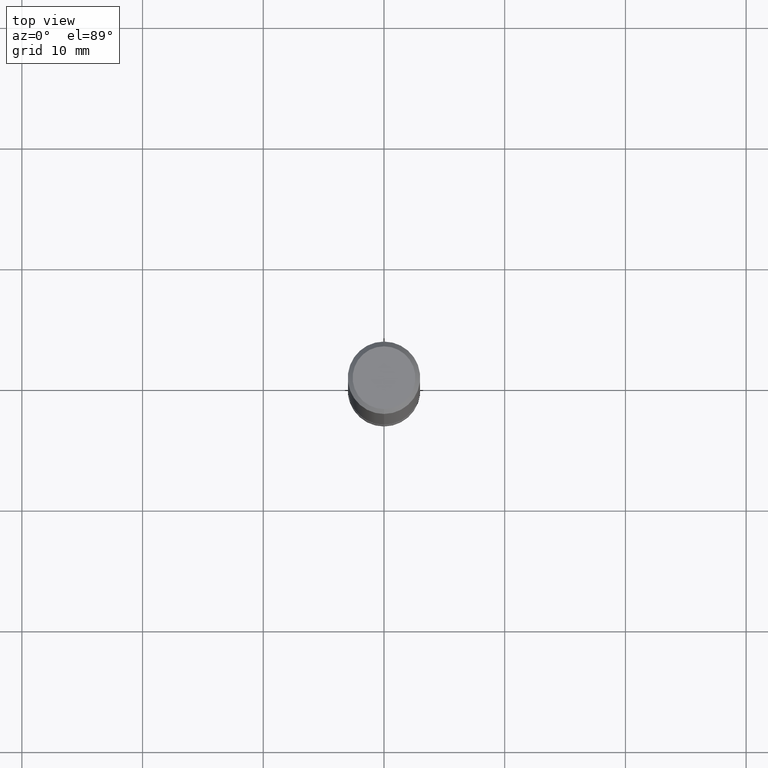
[diagram: clean part render]
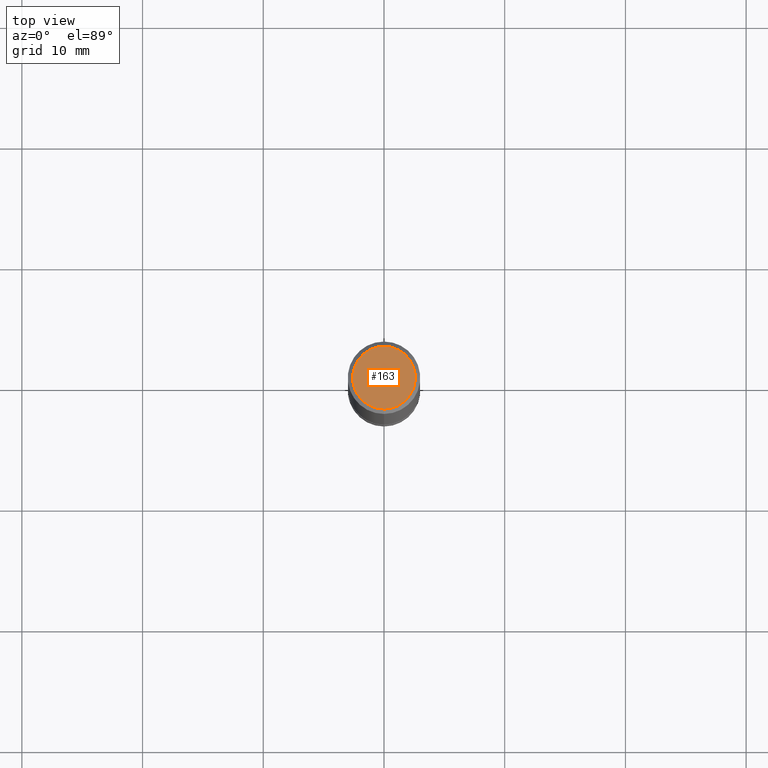
[diagram: same view with one face highlighted and labeled with its STEP entity id]
A machine part, top view. The second image highlights one B-rep face of the part: STEP entity #163.
In plain terms, the highlighted planar face has unit normal (-0, 0, 1).
Its self-contained STEP definition (entity closure, byte-faithful):
#145=VERTEX_POINT('',#336);
#161=EDGE_CURVE('',#231,#145,#355,.T.);
#163=ADVANCED_FACE('',(#357),#358,.T.);
#231=VERTEX_POINT('',#432);
#265=EDGE_CURVE('',#145,#231,#473,.T.);
#336=CARTESIAN_POINT('',(3.18397651993818E-016,-2.6,0.0));
#355=CIRCLE('',#570,2.6);
#357=FACE_OUTER_BOUND('',#572,.T.);
#358=PLANE('',#573);
#432=CARTESIAN_POINT('',(0.0,2.6,0.0));
#473=CIRCLE('',#722,2.6);
#570=AXIS2_PLACEMENT_3D('',#817,#818,#819);
#572=EDGE_LOOP('',(#821,#822));
#573=AXIS2_PLACEMENT_3D('',#823,#824,#825);
#722=AXIS2_PLACEMENT_3D('',#970,#971,#972);
#817=CARTESIAN_POINT('',(0.0,0.0,0.0));
#818=DIRECTION('',(0.0,0.0,-1.0));
#819=DIRECTION('',(0.0,1.0,0.0));
#821=ORIENTED_EDGE('',*,*,#161,.F.);
#822=ORIENTED_EDGE('',*,*,#265,.F.);
#823=CARTESIAN_POINT('',(0.0,1.3,0.0));
#824=DIRECTION('',(-0.0,0.0,1.0));
#825=DIRECTION('',(0.0,-1.0,0.0));
#970=CARTESIAN_POINT('',(0.0,0.0,0.0));
#971=DIRECTION('',(0.0,0.0,-1.0));
#972=DIRECTION('',(0.0,1.0,0.0));